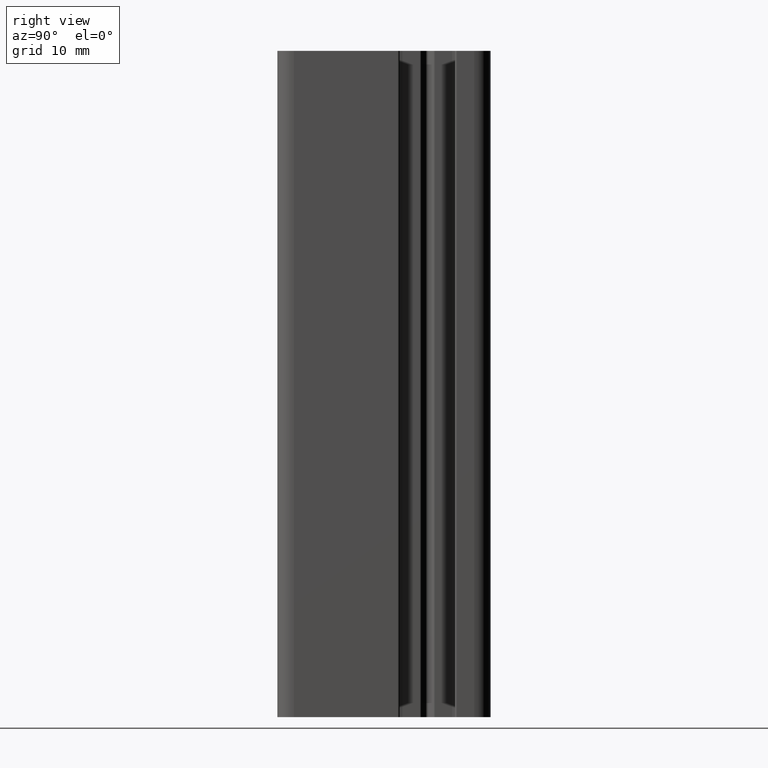
[diagram: clean part render]
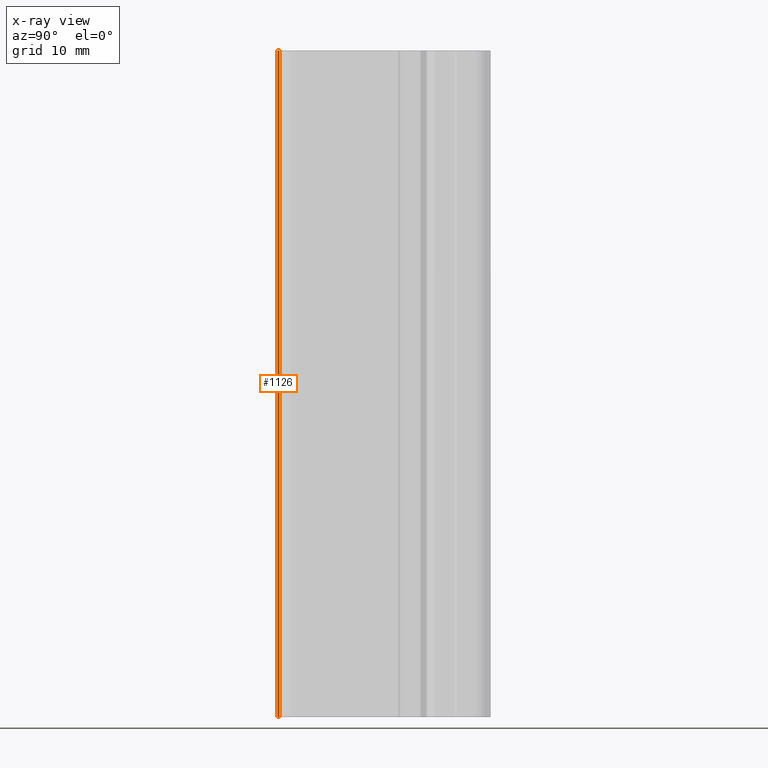
[diagram: x-ray — body ghosted, one internal face saturated and labeled with its STEP entity id]
A machine part, right view, then the same camera in x-ray: the body is ghosted and one INTERNAL B-rep face — a face not visible from any outside direction — is saturated and labeled: STEP entity #1126.
In plain terms, the highlighted cylindrical surface (edge-blend (fillet) strip) has radius 0.3 mm, axis along (0, 0, 1).
Its self-contained STEP definition (entity closure, byte-faithful):
#72=LINE('',#1708,#190);
#73=LINE('',#1711,#191);
#190=VECTOR('',#1364,100.);
#191=VECTOR('',#1367,100.);
#301=FACE_OUTER_BOUND('',#361,.T.);
#361=EDGE_LOOP('',(#794,#795,#796,#797));
#424=CIRCLE('',#1200,0.299999999999407);
#425=CIRCLE('',#1201,0.299999999999407);
#490=VERTEX_POINT('',#1704);
#491=VERTEX_POINT('',#1705);
#492=VERTEX_POINT('',#1707);
#493=VERTEX_POINT('',#1709);
#614=EDGE_CURVE('',#490,#491,#424,.T.);
#615=EDGE_CURVE('',#492,#490,#72,.T.);
#616=EDGE_CURVE('',#493,#492,#425,.T.);
#617=EDGE_CURVE('',#491,#493,#73,.T.);
#794=ORIENTED_EDGE('',*,*,#614,.F.);
#795=ORIENTED_EDGE('',*,*,#615,.F.);
#796=ORIENTED_EDGE('',*,*,#616,.F.);
#797=ORIENTED_EDGE('',*,*,#617,.F.);
#1094=CYLINDRICAL_SURFACE('',#1199,0.299999999999407);
#1126=ADVANCED_FACE('',(#301),#1094,.T.);
#1199=AXIS2_PLACEMENT_3D('',#1703,#1360,#1361);
#1200=AXIS2_PLACEMENT_3D('',#1706,#1362,#1363);
#1201=AXIS2_PLACEMENT_3D('',#1710,#1365,#1366);
#1360=DIRECTION('center_axis',(0.,0.,1.));
#1361=DIRECTION('ref_axis',(1.,1.4802973661698E-14,0.));
#1362=DIRECTION('center_axis',(0.,0.,1.));
#1363=DIRECTION('ref_axis',(1.,1.4802973661698E-14,0.));
#1364=DIRECTION('',(0.,0.,1.));
#1365=DIRECTION('center_axis',(0.,0.,-1.));
#1366=DIRECTION('ref_axis',(1.,1.4802973661698E-14,0.));
#1367=DIRECTION('',(0.,0.,-1.));
#1703=CARTESIAN_POINT('Origin',(4.4499999999994,-22.2000000000006,0.));
#1704=CARTESIAN_POINT('',(4.15,-22.2000000000006,100.));
#1705=CARTESIAN_POINT('',(4.4499999999994,-22.5,100.));
#1706=CARTESIAN_POINT('Origin',(4.4499999999994,-22.2000000000006,100.));
#1707=CARTESIAN_POINT('',(4.15,-22.2000000000006,0.));
#1708=CARTESIAN_POINT('',(4.15,-22.2000000000006,0.));
#1709=CARTESIAN_POINT('',(4.4499999999994,-22.5,0.));
#1710=CARTESIAN_POINT('Origin',(4.4499999999994,-22.2000000000006,0.));
#1711=CARTESIAN_POINT('',(4.4499999999994,-22.5,0.));